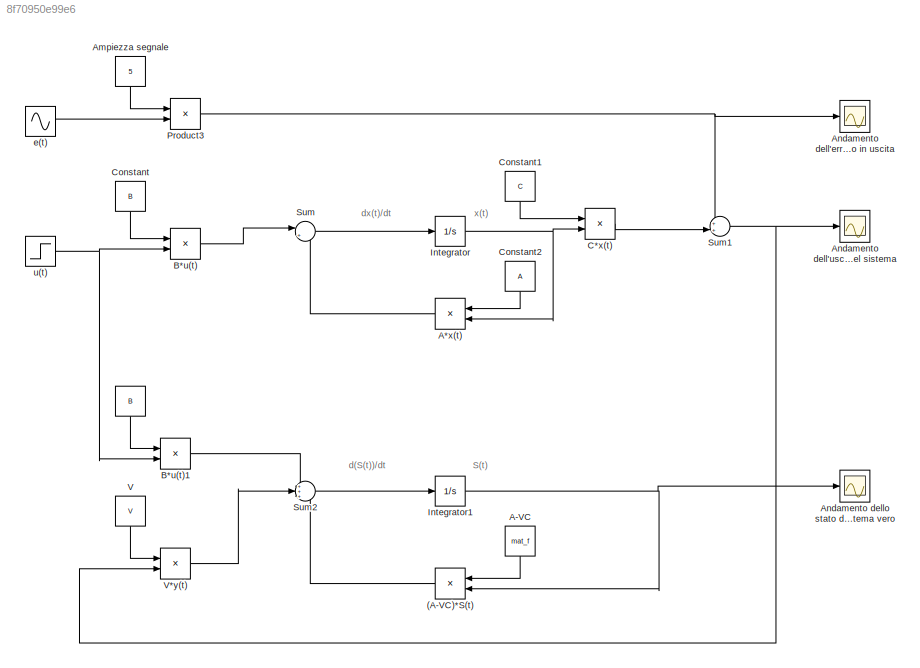
MODEL slx_8f70950e99e6
KIND model
CONFIG AbsTol = auto
CONFIG EnableMultiTasking = off
CONFIG FixedStep = auto
CONFIG MaxStep = auto
CONFIG MinStep = auto
CONFIG RelTol = 1e-3
CONFIG SampleTimeConstraint = Unconstrained
CONFIG Solver = VariableStepAuto
CONFIG SolverName = VariableStepAuto
CONFIG StartTime = 0.0
CONFIG StopTime = 50
BLOCK [Constant]  
  SampleTime = 0
  Value = B
BLOCK [Product] (A-VC)*S(t)
  InputSameDT = off
  Multiplication = Matrix(*)
  OutDataTypeStr = Inherit: Inherit via internal rule
  Ports = [2, 1]
  RndMeth = Floor
  SaturateOnIntegerOverflow = off
BLOCK [Product] A*x(t)
  InputSameDT = off
  Multiplication = Matrix(*)
  OutDataTypeStr = Inherit: Inherit via internal rule
  Ports = [2, 1]
  RndMeth = Floor
  SaturateOnIntegerOverflow = off
BLOCK [Constant] A-VC
  SampleTime = 0
  Value = mat_f
  VectorParams1D = off
BLOCK [Constant] Ampiezza segnale
  SampleTime = 0
  Value = 5
  VectorParams1D = off
BLOCK [Scope] Andamento dell'errore introdotto in uscita
  Floating = off
  NumInputPorts = 1
  Ports = [1]
  ScopeSpecificationString = Simulink.scopes.TimeScopeBlockCfg('CurrentConfiguration', extmgr.ConfigurationSet(extmgr.Configuration('Core','General UI',true),extmgr.Configuration('Core','Source UI',true),extmgr.Configuration('Sources','WiredSimulink',true,'DataLoggingVariableName','ScopeData1'),extmgr.Configuration('Visuals','Time Domain',true,'SerializedDisplays',{struct('MinYLimReal','-6.24904','MaxYLimReal','6.24922','YLab...<+1367ch>
BLOCK [Scope] Andamento dell'uscita del sistema
  Floating = off
  NumInputPorts = 1
  Ports = [1]
  ScopeSpecificationString = Simulink.scopes.TimeScopeBlockCfg('CurrentConfiguration', extmgr.ConfigurationSet(extmgr.Configuration('Core','General UI',true),extmgr.Configuration('Core','Source UI',true),extmgr.Configuration('Sources','WiredSimulink',true),extmgr.Configuration('Visuals','Time Domain',true,'SerializedDisplays',{struct('MinYLimReal','-68.27343','MaxYLimReal','564.89541','YLabelReal','','MinYLimMag','0.00000','M...<+1334ch>
BLOCK [Scope] Andamento dello stato dell'osservatore che simula quello del sistema vero
  Floating = off
  NumInputPorts = 1
  Ports = [1]
  ScopeSpecificationString = Simulink.scopes.TimeScopeBlockCfg('CurrentConfiguration', extmgr.ConfigurationSet(extmgr.Configuration('Core','General UI',true),extmgr.Configuration('Core','Source UI',true),extmgr.Configuration('Sources','WiredSimulink',true,'DataLoggingVariableName','ScopeData2'),extmgr.Configuration('Visuals','Time Domain',true,'SerializedDisplays',{struct('MinYLimReal','-68.16767','MaxYLimReal','571.61631','Y...<+1456ch>
BLOCK [Product] B*u(t)
  InputSameDT = off
  Multiplication = Matrix(*)
  OutDataTypeStr = Inherit: Inherit via internal rule
  Ports = [2, 1]
  RndMeth = Floor
  SaturateOnIntegerOverflow = off
BLOCK [Product] B*u(t)1
  InputSameDT = off
  Multiplication = Matrix(*)
  OutDataTypeStr = Inherit: Inherit via internal rule
  Ports = [2, 1]
  RndMeth = Floor
  SaturateOnIntegerOverflow = off
BLOCK [Product] C*x(t)
  InputSameDT = off
  Multiplication = Matrix(*)
  OutDataTypeStr = Inherit: Inherit via internal rule
  Ports = [2, 1]
  RndMeth = Floor
  SaturateOnIntegerOverflow = off
BLOCK [Constant] Constant
  Value = B
  VectorParams1D = off
BLOCK [Constant] Constant1
  Value = C
  VectorParams1D = off
BLOCK [Constant] Constant2
  Value = A
  VectorParams1D = off
BLOCK [Integrator] Integrator
  Ports = [1, 1]
BLOCK [Integrator] Integrator1
  Ports = [1, 1]
BLOCK [Product] Product3
  InputSameDT = off
  Multiplication = Matrix(*)
  OutDataTypeStr = Inherit: Inherit via internal rule
  Ports = [2, 1]
  RndMeth = Floor
  SaturateOnIntegerOverflow = off
BLOCK [Sum] Sum
  IconShape = round
  InputSameDT = off
  Inputs = |++
  OutDataTypeStr = Inherit: Inherit via internal rule
  Ports = [2, 1]
  SaturateOnIntegerOverflow = off
BLOCK [Sum] Sum1
  IconShape = round
  InputSameDT = off
  Inputs = ++|
  OutDataTypeStr = Inherit: Inherit via internal rule
  Ports = [2, 1]
  SaturateOnIntegerOverflow = off
BLOCK [Sum] Sum2
  IconShape = round
  InputSameDT = off
  Inputs = +++
  OutDataTypeStr = Inherit: Inherit via internal rule
  Ports = [3, 1]
  SaturateOnIntegerOverflow = off
BLOCK [Constant] V
  SampleTime = 0
  Value = V
  VectorParams1D = off
BLOCK [Product] V*y(t)
  InputSameDT = off
  Multiplication = Matrix(*)
  OutDataTypeStr = Inherit: Inherit via internal rule
  Ports = [2, 1]
  RndMeth = Floor
  SaturateOnIntegerOverflow = off
BLOCK [Sin] e(t)
  Frequency = 5
  Ports = [0, 1]
  SampleTime = 0
BLOCK [Step] u(t)
  SampleTime = 0
  Time = 5
ANNOTATION (root): d(S(t))/dt
ANNOTATION (root): dx(t)/dt
ANNOTATION (root): S(t)
ANNOTATION (root): x(t)
LINE  :1 -> B*u(t)1:1
LINE (A-VC)*S(t):1 -> Sum2:3
LINE A*x(t):1 -> Sum:2
LINE A-VC:1 -> (A-VC)*S(t):1
LINE Ampiezza segnale:1 -> Product3:1
LINE B*u(t)1:1 -> Sum2:1
LINE B*u(t):1 -> Sum:1
LINE C*x(t):1 -> Sum1:2
LINE Constant1:1 -> C*x(t):1
LINE Constant2:1 -> A*x(t):1
LINE Constant:1 -> B*u(t):1
NET Integrator1:1 -> (A-VC)*S(t):2, Andamento dello stato dell'osservatore che simula quello del sistema vero:1
NET Integrator:1 -> A*x(t):2, C*x(t):2
NET Product3:1 -> Andamento dell'errore introdotto in uscita:1, Sum1:1
NET Sum1:1 -> Andamento dell'uscita del sistema:1, V*y(t):2
LINE Sum2:1 -> Integrator1:1
LINE Sum:1 -> Integrator:1
LINE V*y(t):1 -> Sum2:2
LINE V:1 -> V*y(t):1
LINE e(t):1 -> Product3:2
NET u(t):1 -> B*u(t)1:2, B*u(t):2
note: NET lines group one-source signal fan-out (src -> all destinations, sorted); 1:1 wires keep LINE
